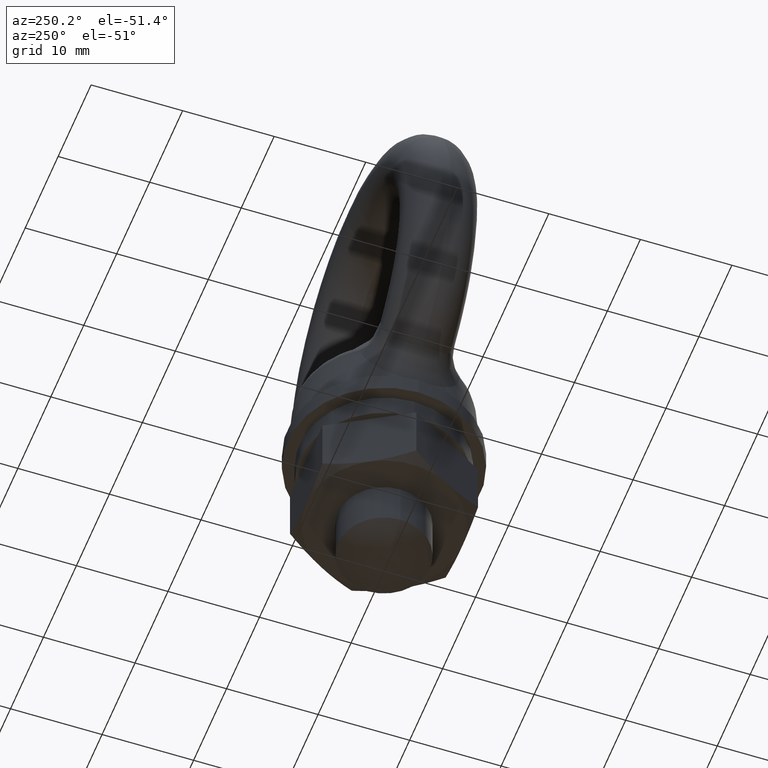
[diagram: clean part render]
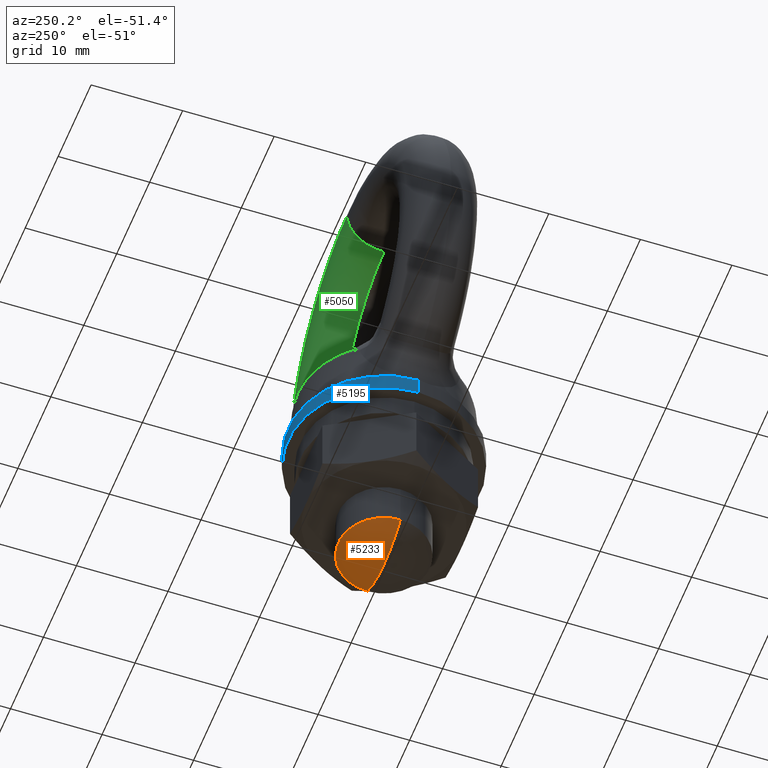
[diagram: same view with three faces highlighted in distinct colors, each labeled with its STEP entity id]
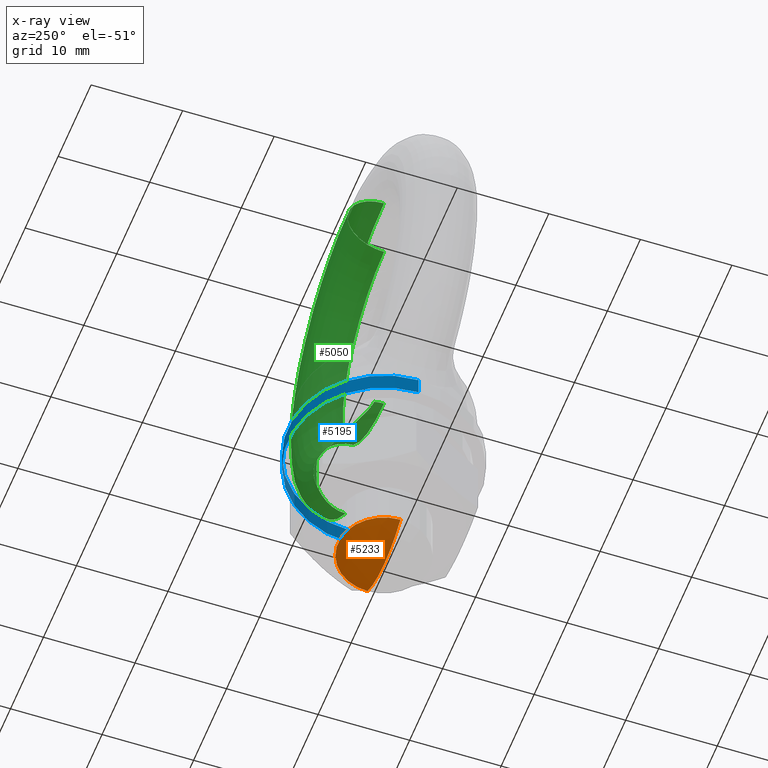
[diagram: x-ray of the same camera — body ghosted, the three highlighted faces saturated]
A machine part, auxiliary view with three faces highlighted in distinct colors.
The next image is the same camera in x-ray (body ghosted, the three faces saturated) — at least one of them is partly hidden behind the body in this view.
Their STEP definitions:

[orange] entity #5233 — the highlighted spherical surface has radius 9.0833 mm.
#71 = SPHERICAL_SURFACE ( 'NONE', #206, 9.083333000000001400 ) ;
#72 = CARTESIAN_POINT ( 'NONE',  ( 0.0000000000000000000, 0.0000000000000000000, -29.91667199999999800 ) ) ;
#73 = FACE_OUTER_BOUND ( 'NONE', #5234, .T. ) ;
#202 = AXIS2_PLACEMENT_3D ( 'NONE', #1307, #1439, #1438 ) ;
#203 = CIRCLE ( 'NONE', #202, 4.999999622219589500 ) ;
#204 = DIRECTION ( 'NONE',  ( -1.000000000000000000, 0.0000000000000000000, 0.0000000000000000000 ) ) ;
#205 = DIRECTION ( 'NONE',  ( 0.0000000000000000000, 1.000000000000000000, 0.0000000000000000000 ) ) ;
#206 = AXIS2_PLACEMENT_3D ( 'NONE', #72, #205, #204 ) ;
#1304 = CIRCLE ( 'NONE', #2082, 9.083333000000001400 ) ;
#1305 = CARTESIAN_POINT ( 'NONE',  ( 4.999999622219589500, 0.0000000000000000000, -37.50000518315189900 ) ) ;
#1306 = CARTESIAN_POINT ( 'NONE',  ( -4.999999622219589500, 6.123031537795731500E-016, -37.50000518315189900 ) ) ;
#1307 = CARTESIAN_POINT ( 'NONE',  ( 0.0000000000000000000, 0.0000000000000000000, -37.50000518315189900 ) ) ;
#1438 = DIRECTION ( 'NONE',  ( -1.000000000000000000, 0.0000000000000000000, 0.0000000000000000000 ) ) ;
#1439 = DIRECTION ( 'NONE',  ( 0.0000000000000000000, 0.0000000000000000000, -1.000000000000000000 ) ) ;
#2064 = CARTESIAN_POINT ( 'NONE',  ( 0.0000000000000000000, 0.0000000000000000000, -29.91667199999999800 ) ) ;
#2065 = CIRCLE ( 'NONE', #2066, 9.083332999999999700 ) ;
#2066 = AXIS2_PLACEMENT_3D ( 'NONE', #2064, #2096, #2079 ) ;
#2079 = DIRECTION ( 'NONE',  ( 0.0000000000000000000, 0.0000000000000000000, -1.000000000000000000 ) ) ;
#2082 = AXIS2_PLACEMENT_3D ( 'NONE', #2094, #2093, #2097 ) ;
#2091 = CARTESIAN_POINT ( 'NONE',  ( -5.561753652842237700E-016, 0.0000000000000000000, -39.00000499999999400 ) ) ;
#2093 = DIRECTION ( 'NONE',  ( -1.224606353822377300E-016, 1.000000000000000000, 0.0000000000000000000 ) ) ;
#2094 = CARTESIAN_POINT ( 'NONE',  ( 0.0000000000000000000, 0.0000000000000000000, -29.91667199999999800 ) ) ;
#2096 = DIRECTION ( 'NONE',  ( 0.0000000000000000000, -1.000000000000000000, 0.0000000000000000000 ) ) ;
#2097 = DIRECTION ( 'NONE',  ( -1.000000000000000000, -1.224606353822377000E-016, 0.0000000000000000000 ) ) ;
#5233 = ADVANCED_FACE ( 'NONE', ( #73 ), #71, .T. ) ;
#5234 = EDGE_LOOP ( 'NONE', ( #5235, #5239, #5242 ) ) ;
#5235 = ORIENTED_EDGE ( 'NONE', *, *, #5236, .T. ) ;
#5236 = EDGE_CURVE ( 'NONE', #5237, #5238, #203, .T. ) ;
#5237 = VERTEX_POINT ( 'NONE', #1306 ) ;
#5238 = VERTEX_POINT ( 'NONE', #1305 ) ;
#5239 = ORIENTED_EDGE ( 'NONE', *, *, #5240, .T. ) ;
#5240 = EDGE_CURVE ( 'NONE', #5238, #5241, #1304, .T. ) ;
#5241 = VERTEX_POINT ( 'NONE', #2091 ) ;
#5242 = ORIENTED_EDGE ( 'NONE', *, *, #5243, .F. ) ;
#5243 = EDGE_CURVE ( 'NONE', #5237, #5241, #2065, .T. ) ;

[blue] entity #5195 — the highlighted cylindrical surface (partial cylindrical patch) has radius 10.5 mm, axis along (0, 0, -1).
#1463 = CARTESIAN_POINT ( 'NONE',  ( -10.50000000000000000, 0.0000000000000000000, -23.00000000000000000 ) ) ;
#1464 = DIRECTION ( 'NONE',  ( 1.000000000000000000, 0.0000000000000000000, 0.0000000000000000000 ) ) ;
#1465 = DIRECTION ( 'NONE',  ( 0.0000000000000000000, 0.0000000000000000000, -1.000000000000000000 ) ) ;
#1466 = CARTESIAN_POINT ( 'NONE',  ( 0.0000000000000000000, 0.0000000000000000000, -23.00000000000000000 ) ) ;
#1467 = AXIS2_PLACEMENT_3D ( 'NONE', #1466, #1465, #1464 ) ;
#1492 = CARTESIAN_POINT ( 'NONE',  ( 10.50000000000000000, 1.285836671513496100E-015, -21.00000000000000000 ) ) ;
#1493 = DIRECTION ( 'NONE',  ( 1.000000000000000000, 0.0000000000000000000, 0.0000000000000000000 ) ) ;
#1494 = DIRECTION ( 'NONE',  ( 0.0000000000000000000, 0.0000000000000000000, -1.000000000000000000 ) ) ;
#1495 = AXIS2_PLACEMENT_3D ( 'NONE', #1501, #1494, #1493 ) ;
#1496 = CIRCLE ( 'NONE', #1495, 10.50000000000000000 ) ;
#1501 = CARTESIAN_POINT ( 'NONE',  ( 0.0000000000000000000, 0.0000000000000000000, -21.00000000000000000 ) ) ;
#1507 = CIRCLE ( 'NONE', #1467, 10.50000000000000000 ) ;
#1508 = DIRECTION ( 'NONE',  ( 0.0000000000000000000, 0.0000000000000000000, -1.000000000000000000 ) ) ;
#1509 = VECTOR ( 'NONE', #1508, 1000.000000000000000 ) ;
#1510 = CARTESIAN_POINT ( 'NONE',  ( 10.50000000000000000, 1.285836671513496100E-015, 977.0000000000000000 ) ) ;
#1511 = LINE ( 'NONE', #1510, #1509 ) ;
#1512 = CARTESIAN_POINT ( 'NONE',  ( 10.50000000000000000, 1.285836671513496100E-015, -23.00000000000000000 ) ) ;
#1513 = DIRECTION ( 'NONE',  ( -1.000000000000000000, 0.0000000000000000000, 0.0000000000000000000 ) ) ;
#1514 = DIRECTION ( 'NONE',  ( 0.0000000000000000000, 0.0000000000000000000, -1.000000000000000000 ) ) ;
#1515 = AXIS2_PLACEMENT_3D ( 'NONE', #1517, #1514, #1513 ) ;
#1516 = CYLINDRICAL_SURFACE ( 'NONE', #1515, 10.50000000000000000 ) ;
#1517 = CARTESIAN_POINT ( 'NONE',  ( 0.0000000000000000000, 0.0000000000000000000, 977.0000000000000000 ) ) ;
#1518 = FACE_OUTER_BOUND ( 'NONE', #5191, .T. ) ;
#1519 = CARTESIAN_POINT ( 'NONE',  ( -10.50000000000000000, 0.0000000000000000000, -21.00000000000000000 ) ) ;
#1906 = VECTOR ( 'NONE', #1948, 1000.000000000000000 ) ;
#1907 = CARTESIAN_POINT ( 'NONE',  ( -10.50000000000000000, 0.0000000000000000000, 977.0000000000000000 ) ) ;
#1908 = LINE ( 'NONE', #1907, #1906 ) ;
#1948 = DIRECTION ( 'NONE',  ( 0.0000000000000000000, 0.0000000000000000000, -1.000000000000000000 ) ) ;
#5169 = EDGE_CURVE ( 'NONE', #5193, #5170, #1496, .T. ) ;
#5170 = VERTEX_POINT ( 'NONE', #1492 ) ;
#5191 = EDGE_LOOP ( 'NONE', ( #5192, #5197, #5200, #5203 ) ) ;
#5192 = ORIENTED_EDGE ( 'NONE', *, *, #5169, .T. ) ;
#5193 = VERTEX_POINT ( 'NONE', #1519 ) ;
#5195 = ADVANCED_FACE ( 'NONE', ( #1518 ), #1516, .T. ) ;
#5197 = ORIENTED_EDGE ( 'NONE', *, *, #5199, .T. ) ;
#5198 = VERTEX_POINT ( 'NONE', #1512 ) ;
#5199 = EDGE_CURVE ( 'NONE', #5170, #5198, #1511, .T. ) ;
#5200 = ORIENTED_EDGE ( 'NONE', *, *, #5201, .F. ) ;
#5201 = EDGE_CURVE ( 'NONE', #5202, #5198, #1507, .T. ) ;
#5202 = VERTEX_POINT ( 'NONE', #1463 ) ;
#5203 = ORIENTED_EDGE ( 'NONE', *, *, #5302, .F. ) ;
#5302 = EDGE_CURVE ( 'NONE', #5193, #5202, #1908, .T. ) ;

[green] entity #5050 — the highlighted toroidal blend (fillet) surface has major radius 16.5 mm and minor (blend) radius 4 mm.
#84 = B_SPLINE_CURVE_WITH_KNOTS ( 'NONE', 3,
 ( #117, #116, #115, #113, #112, #111, #110, #183, #182, #181, #180, #179, #178, #177, #176, #175 ),
 .UNSPECIFIED., .F., .F.,
 ( 4, 2, 2, 2, 2, 2, 2, 4 ),
 ( 0.0000000000000000000, 0.0005506281654855558700, 0.001101256330971111700, 0.001651884496456667600, 0.002202512661942223500, 0.002753140827427779300, 0.003303768992913335200, 0.004405025323884447000 ),
 .UNSPECIFIED. ) ;
#110 = CARTESIAN_POINT ( 'NONE',  ( 10.04427290204945000, 3.987707195086939800, -12.62728632119275800 ) ) ;
#111 = CARTESIAN_POINT ( 'NONE',  ( 10.13794460739424100, 3.999920479011717300, -12.78624051028102900 ) ) ;
#112 = CARTESIAN_POINT ( 'NONE',  ( 10.28783256958711200, 4.000078753457428200, -13.12816381761267900 ) ) ;
#113 = CARTESIAN_POINT ( 'NONE',  ( 10.34179866062223000, 3.987777649902833200, -13.30735372179037200 ) ) ;
#115 = CARTESIAN_POINT ( 'NONE',  ( 10.41281054562488800, 3.945210029772010500, -13.66506971429504000 ) ) ;
#116 = CARTESIAN_POINT ( 'NONE',  ( 10.43069568632454000, 3.914880150612583000, -13.84590569122214800 ) ) ;
#117 = CARTESIAN_POINT ( 'NONE',  ( 10.43268733045542100, 3.877413604260044900, -14.02865645472643900 ) ) ;
#118 = CARTESIAN_POINT ( 'NONE',  ( -4.377541674063780900E-013, 1.068570525734879200, -12.64537199829468900 ) ) ;
#119 = B_SPLINE_CURVE_WITH_KNOTS ( 'NONE', 3,
 ( #172, #171, #170, #169, #168, #167, #166, #165, #164, #163 ),
 .UNSPECIFIED., .F., .F.,
 ( 4, 2, 2, 2, 4 ),
 ( 0.0000000000000000000, 0.003908837961975736100, 0.005863256942963603800, 0.006840466433457538000, 0.007817675923951472200 ),
 .UNSPECIFIED. ) ;
#127 = CARTESIAN_POINT ( 'NONE',  ( 11.66463721091491700, -3.008164902650272100E-011, -16.85782425871557100 ) ) ;
#163 = CARTESIAN_POINT ( 'NONE',  ( -4.377541674063780900E-013, 1.068570525734879200, -12.64537199829468900 ) ) ;
#164 = CARTESIAN_POINT ( 'NONE',  ( 0.3268158079321276100, 1.068570525734824400, -12.64537199829468500 ) ) ;
#165 = CARTESIAN_POINT ( 'NONE',  ( 0.6489984404384978600, 1.134613044114469700, -12.65064654013974500 ) ) ;
#166 = CARTESIAN_POINT ( 'NONE',  ( 1.281017108672212600, 1.295223943684878000, -12.65379115529197700 ) ) ;
#167 = CARTESIAN_POINT ( 'NONE',  ( 1.593585985159962300, 1.389776511621657400, -12.65156922857541700 ) ) ;
#168 = CARTESIAN_POINT ( 'NONE',  ( 2.528682672776903000, 1.676757055052370500, -12.62673140614984200 ) ) ;
#169 = CARTESIAN_POINT ( 'NONE',  ( 3.148069537101431300, 1.875772282719821800, -12.58639663881572800 ) ) ;
#170 = CARTESIAN_POINT ( 'NONE',  ( 5.005277452596188500, 2.461418736802242900, -12.39784555554043900 ) ) ;
#171 = CARTESIAN_POINT ( 'NONE',  ( 6.233543521943151900, 2.843577897208044100, -12.18270571985227900 ) ) ;
#172 = CARTESIAN_POINT ( 'NONE',  ( 7.467880627820269600, 3.177411983194720500, -11.92478774879418100 ) ) ;
#175 = CARTESIAN_POINT ( 'NONE',  ( 7.467880627820269600, 3.177411983194720500, -11.92478774879418100 ) ) ;
#176 = CARTESIAN_POINT ( 'NONE',  ( 7.819693470380862300, 3.272561937105513700, -11.85127553392729500 ) ) ;
#177 = CARTESIAN_POINT ( 'NONE',  ( 8.170083114881112600, 3.383184701333605400, -11.80235314141596300 ) ) ;
#178 = CARTESIAN_POINT ( 'NONE',  ( 8.695333484958270600, 3.562554375078113500, -11.82466802386124400 ) ) ;
#179 = CARTESIAN_POINT ( 'NONE',  ( 8.871490684972322100, 3.624855766044186000, -11.84906135502019700 ) ) ;
#180 = CARTESIAN_POINT ( 'NONE',  ( 9.211872592812234500, 3.744371187428965400, -11.94566456662975900 ) ) ;
#181 = CARTESIAN_POINT ( 'NONE',  ( 9.374443474979038600, 3.800879500088069700, -12.01751718833933000 ) ) ;
#182 = CARTESIAN_POINT ( 'NONE',  ( 9.673667092116049900, 3.896741838874793600, -12.21311517874696100 ) ) ;
#183 = CARTESIAN_POINT ( 'NONE',  ( 9.811294439948758500, 3.936136526383830600, -12.33845362442250800 ) ) ;
#1440 = DIRECTION ( 'NONE',  ( 0.0000000000000000000, 0.0000000000000000000, 1.000000000000000000 ) ) ;
#1441 = DIRECTION ( 'NONE',  ( -1.000000000000000000, 0.0000000000000000000, 0.0000000000000000000 ) ) ;
#1442 = CARTESIAN_POINT ( 'NONE',  ( 0.0000000000000000000, 0.0000000000000000000, -16.50000000000000000 ) ) ;
#1443 = AXIS2_PLACEMENT_3D ( 'NONE', #1442, #1441, #1440 ) ;
#1444 = CIRCLE ( 'NONE', #1443, 4.000000000000000000 ) ;
#1456 = CARTESIAN_POINT ( 'NONE',  ( 0.0000000000000000000, 4.898425415289509000E-016, -12.50000000000000000 ) ) ;
#2026 = CARTESIAN_POINT ( 'NONE',  ( 1.530757942277971400E-015, 0.0000000000000000000, 12.50000000000000000 ) ) ;
#2027 = CARTESIAN_POINT ( 'NONE',  ( 2.510443025335873400E-015, 0.0000000000000000000, 20.50000000000000000 ) ) ;
#2074 = DIRECTION ( 'NONE',  ( 0.0000000000000000000, 0.0000000000000000000, -1.000000000000000000 ) ) ;
#2075 = DIRECTION ( 'NONE',  ( 0.0000000000000000000, -1.000000000000000000, 0.0000000000000000000 ) ) ;
#2076 = AXIS2_PLACEMENT_3D ( 'NONE', #2098, #2075, #2074 ) ;
#2077 = CIRCLE ( 'NONE', #2076, 12.50000000000000000 ) ;
#2086 = DIRECTION ( 'NONE',  ( -1.224606353822377500E-016, 0.0000000000000000000, -1.000000000000000000 ) ) ;
#2087 = DIRECTION ( 'NONE',  ( 1.000000000000000000, 0.0000000000000000000, -1.224606353822377300E-016 ) ) ;
#2088 = CARTESIAN_POINT ( 'NONE',  ( 2.020600483806922500E-015, 0.0000000000000000000, 16.50000000000000000 ) ) ;
#2089 = AXIS2_PLACEMENT_3D ( 'NONE', #2088, #2087, #2086 ) ;
#2090 = CIRCLE ( 'NONE', #2089, 4.000000000000000000 ) ;
#2098 = CARTESIAN_POINT ( 'NONE',  ( 0.0000000000000000000, 4.898425415289509000E-016, 0.0000000000000000000 ) ) ;
#5050 = ADVANCED_FACE ( 'NONE', ( #5737 ), #5765, .T. ) ;
#5051 = EDGE_LOOP ( 'NONE', ( #5052, #5053, #5056, #5223, #5215, #5217, #5218 ) ) ;
#5052 = ORIENTED_EDGE ( 'NONE', *, *, #5073, .F. ) ;
#5053 = ORIENTED_EDGE ( 'NONE', *, *, #5054, .T. ) ;
#5054 = EDGE_CURVE ( 'NONE', #5221, #5055, #5761, .T. ) ;
#5055 = VERTEX_POINT ( 'NONE', #5739 ) ;
#5056 = ORIENTED_EDGE ( 'NONE', *, *, #5222, .T. ) ;
#5057 = VERTEX_POINT ( 'NONE', #5760 ) ;
#5073 = EDGE_CURVE ( 'NONE', #5221, #5294, #5618, .T. ) ;
#5208 = VERTEX_POINT ( 'NONE', #1456 ) ;
#5215 = ORIENTED_EDGE ( 'NONE', *, *, #5216, .F. ) ;
#5216 = EDGE_CURVE ( 'NONE', #5208, #5225, #1444, .T. ) ;
#5217 = ORIENTED_EDGE ( 'NONE', *, *, #5247, .T. ) ;
#5218 = ORIENTED_EDGE ( 'NONE', *, *, #5251, .T. ) ;
#5221 = VERTEX_POINT ( 'NONE', #127 ) ;
#5222 = EDGE_CURVE ( 'NONE', #5055, #5057, #84, .T. ) ;
#5223 = ORIENTED_EDGE ( 'NONE', *, *, #5224, .T. ) ;
#5224 = EDGE_CURVE ( 'NONE', #5057, #5225, #119, .T. ) ;
#5225 = VERTEX_POINT ( 'NONE', #118 ) ;
#5247 = EDGE_CURVE ( 'NONE', #5208, #5295, #2077, .T. ) ;
#5251 = EDGE_CURVE ( 'NONE', #5295, #5294, #2090, .T. ) ;
#5294 = VERTEX_POINT ( 'NONE', #2027 ) ;
#5295 = VERTEX_POINT ( 'NONE', #2026 ) ;
#5617 = AXIS2_PLACEMENT_3D ( 'NONE', #5697, #5696, #5695 ) ;
#5618 = CIRCLE ( 'NONE', #5617, 20.50000000000000000 ) ;
#5695 = DIRECTION ( 'NONE',  ( 0.0000000000000000000, 0.0000000000000000000, -1.000000000000000000 ) ) ;
#5696 = DIRECTION ( 'NONE',  ( 0.0000000000000000000, -1.000000000000000000, 0.0000000000000000000 ) ) ;
#5697 = CARTESIAN_POINT ( 'NONE',  ( 0.0000000000000000000, 0.0000000000000000000, 0.0000000000000000000 ) ) ;
#5737 = FACE_OUTER_BOUND ( 'NONE', #5051, .T. ) ;
#5739 = CARTESIAN_POINT ( 'NONE',  ( 10.43268733045542100, 3.877413604260044900, -14.02865645472643900 ) ) ;
#5740 = CARTESIAN_POINT ( 'NONE',  ( 10.43268733045542100, 3.877413604260044900, -14.02865645472643900 ) ) ;
#5741 = CARTESIAN_POINT ( 'NONE',  ( 10.43512833073318500, 3.831493829418950900, -14.25263957377864400 ) ) ;
#5742 = CARTESIAN_POINT ( 'NONE',  ( 10.45538312434290700, 3.769642908169118700, -14.47282916352848600 ) ) ;
#5743 = CARTESIAN_POINT ( 'NONE',  ( 10.53093981354513000, 3.607674165859228400, -14.89345384680518700 ) ) ;
#5744 = CARTESIAN_POINT ( 'NONE',  ( 10.58501042417164200, 3.509605501248137700, -15.08919766247702300 ) ) ;
#5745 = CARTESIAN_POINT ( 'NONE',  ( 10.71571964162091300, 3.276602941390821300, -15.45308340366726100 ) ) ;
#5746 = CARTESIAN_POINT ( 'NONE',  ( 10.79303833821526300, 3.140168226058776200, -15.62211158787230000 ) ) ;
#5747 = CARTESIAN_POINT ( 'NONE',  ( 10.95096572944683400, 2.842645967707622100, -15.92032543530144300 ) ) ;
#5748 = CARTESIAN_POINT ( 'NONE',  ( 11.03226769461791400, 2.680448513313148200, -16.05194163891196600 ) ) ;
#5749 = CARTESIAN_POINT ( 'NONE',  ( 11.18991545514856000, 2.329235969174305900, -16.28588359391605100 ) ) ;
#5750 = CARTESIAN_POINT ( 'NONE',  ( 11.26664855299514700, 2.138757008878930500, -16.38849511922224200 ) ) ;
#5751 = CARTESIAN_POINT ( 'NONE',  ( 11.40229897704888600, 1.745036253139454100, -16.56054895166969100 ) ) ;
#5752 = CARTESIAN_POINT ( 'NONE',  ( 11.46204194443548200, 1.540353998308939200, -16.63119779803789600 ) ) ;
#5753 = CARTESIAN_POINT ( 'NONE',  ( 11.56084793798950400, 1.115133617313793100, -16.74481670295696700 ) ) ;
#5754 = CARTESIAN_POINT ( 'NONE',  ( 11.59988919696608900, 0.8931911194612897100, -16.78770033408829200 ) ) ;
#5755 = CARTESIAN_POINT ( 'NONE',  ( 11.65149651876757100, 0.4492757659482777800, -16.84388619699042500 ) ) ;
#5756 = CARTESIAN_POINT ( 'NONE',  ( 11.66463721091608700, 0.2255363563936658700, -16.85782425871682500 ) ) ;
#5759 = CARTESIAN_POINT ( 'NONE',  ( 11.66463721091491700, -3.008164902650272100E-011, -16.85782425871557100 ) ) ;
#5760 = CARTESIAN_POINT ( 'NONE',  ( 7.467880627820269600, 3.177411983194720500, -11.92478774879418100 ) ) ;
#5761 = B_SPLINE_CURVE_WITH_KNOTS ( 'NONE', 3,
 ( #5759, #5756, #5755, #5754, #5753, #5752, #5751, #5750, #5749, #5748, #5747, #5746, #5745, #5744, #5743, #5742, #5741, #5740 ),
 .UNSPECIFIED., .F., .F.,
 ( 4, 2, 2, 2, 2, 2, 2, 2, 4 ),
 ( 0.005399195201900478800, 0.006074032370226007900, 0.006748869538551536900, 0.007423706706877066000, 0.008098543875202594100, 0.008773381043528124000, 0.009448218211853648800, 0.01012305538017917500, 0.01079789254850470000 ),
 .UNSPECIFIED. ) ;
#5762 = DIRECTION ( 'NONE',  ( 0.0000000000000000000, 0.0000000000000000000, -1.000000000000000000 ) ) ;
#5763 = DIRECTION ( 'NONE',  ( 0.0000000000000000000, -1.000000000000000000, 0.0000000000000000000 ) ) ;
#5764 = AXIS2_PLACEMENT_3D ( 'NONE', #5766, #5763, #5762 ) ;
#5765 = TOROIDAL_SURFACE ( 'NONE', #5764, 16.50000000000000000, 4.000000000000000000 ) ;
#5766 = CARTESIAN_POINT ( 'NONE',  ( 0.0000000000000000000, 0.0000000000000000000, 0.0000000000000000000 ) ) ;